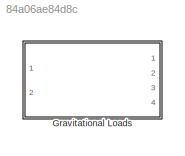
MODEL slx_84a06ae84d8c
KIND library
CONFIG AbsTol = auto
CONFIG EnableMultiTasking = off
CONFIG FixedStep = auto
CONFIG MaxStep = auto
CONFIG MinStep = auto
CONFIG RelTol = 1e-3
CONFIG SampleTimeConstraint = Unconstrained
CONFIG Solver = VariableStepAuto
CONFIG SolverName = VariableStepAuto
CONFIG StartTime = 0.0
CONFIG StopTime = 10.0
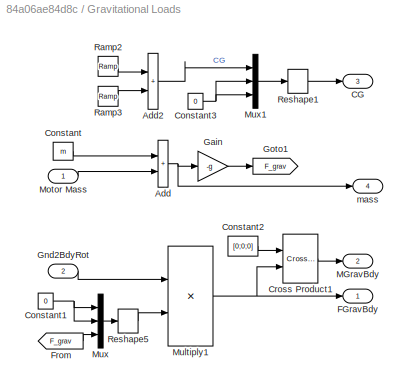
BLOCK [SubSystem] Gravitational Loads
  Ports = [2, 4]
  RequestExecContextInheritance = off
BLOCK [Sum] Gravitational Loads/Add
  IconShape = rectangular
  Ports = [2, 1]
BLOCK [Sum] Gravitational Loads/Add2
  IconShape = rectangular
  Ports = [2, 1]
BLOCK [Outport] Gravitational Loads/CG
  Port = 3
  VectorParamsAs1DForOutWhenUnconnected = off
BLOCK [Constant] Gravitational Loads/Constant
  Value = m
BLOCK [Constant] Gravitational Loads/Constant1
  Value = 0
BLOCK [Constant] Gravitational Loads/Constant2
  Value = [0;0;0]
BLOCK [Constant] Gravitational Loads/Constant3
  Value = 0
BLOCK [Reference] Gravitational Loads/Cross Product1  REF=vrlib/Utilities/Cross Product
  Ports = [2, 1]
  SourceBlock = vrlib/Utilities/Cross Product
  SourceProductBaseCode = SL
  SourceType = Cross Product
BLOCK [Outport] Gravitational Loads/FGravBdy
  VectorParamsAs1DForOutWhenUnconnected = off
BLOCK [From] Gravitational Loads/From
  GotoTag = F_grav
BLOCK [Gain] Gravitational Loads/Gain
  Gain = -g
BLOCK [Inport] Gravitational Loads/Gnd2BdyRot
  Port = 2
BLOCK [Goto] Gravitational Loads/Goto1
  GotoTag = F_grav
BLOCK [Outport] Gravitational Loads/MGravBdy
  Port = 2
  VectorParamsAs1DForOutWhenUnconnected = off
BLOCK [Inport] Gravitational Loads/Motor Mass
BLOCK [Product] Gravitational Loads/Multiply1
  Multiplication = Matrix(*)
  Ports = [2, 1]
BLOCK [Mux] Gravitational Loads/Mux
  DisplayOption = bar
  Inputs = 3
  Ports = [3, 1]
BLOCK [Mux] Gravitational Loads/Mux1
  DisplayOption = bar
  Inputs = 3
  Ports = [3, 1]
BLOCK [Reference] Gravitational Loads/Ramp2  REF=simulink/Sources/Ramp
  Ports = [0, 1]
  SourceBlock = simulink/Sources/Ramp
  SourceProductBaseCode = SL
  SourceType = Ramp
BLOCK [Reference] Gravitational Loads/Ramp3  REF=simulink/Sources/Ramp
  Ports = [0, 1]
  SourceBlock = simulink/Sources/Ramp
  SourceProductBaseCode = SL
  SourceType = Ramp
BLOCK [Reshape] Gravitational Loads/Reshape1
  OutputDimensionality = Column vector (2-D)
  Ports = [1, 1]
BLOCK [Reshape] Gravitational Loads/Reshape5
  OutputDimensionality = Column vector (2-D)
  Ports = [1, 1]
BLOCK [Outport] Gravitational Loads/mass
  Port = 4
  VectorParamsAs1DForOutWhenUnconnected = off
LINE Gravitational Loads/Add2:1 -> Gravitational Loads/Mux1:1
NET Gravitational Loads/Add:1 -> Gravitational Loads/Gain:1, Gravitational Loads/mass:1
NET Gravitational Loads/Constant1:1 -> Gravitational Loads/Mux:1, Gravitational Loads/Mux:2
LINE Gravitational Loads/Constant2:1 -> Gravitational Loads/Cross Product1:1
NET Gravitational Loads/Constant3:1 -> Gravitational Loads/Mux1:2, Gravitational Loads/Mux1:3
LINE Gravitational Loads/Constant:1 -> Gravitational Loads/Add:1
LINE Gravitational Loads/Cross Product1:1 -> Gravitational Loads/MGravBdy:1
LINE Gravitational Loads/From:1 -> Gravitational Loads/Mux:3
LINE Gravitational Loads/Gain:1 -> Gravitational Loads/Goto1:1
LINE Gravitational Loads/Gnd2BdyRot:1 -> Gravitational Loads/Multiply1:1
LINE Gravitational Loads/Motor Mass:1 -> Gravitational Loads/Add:2
NET Gravitational Loads/Multiply1:1 -> Gravitational Loads/Cross Product1:2, Gravitational Loads/FGravBdy:1
LINE Gravitational Loads/Mux1:1 -> Gravitational Loads/Reshape1:1
LINE Gravitational Loads/Mux:1 -> Gravitational Loads/Reshape5:1
LINE Gravitational Loads/Ramp2:1 -> Gravitational Loads/Add2:1
LINE Gravitational Loads/Ramp3:1 -> Gravitational Loads/Add2:2
LINE Gravitational Loads/Reshape1:1 -> Gravitational Loads/CG:1
LINE Gravitational Loads/Reshape5:1 -> Gravitational Loads/Multiply1:2
note: NET lines group one-source signal fan-out (src -> all destinations, sorted); 1:1 wires keep LINE
